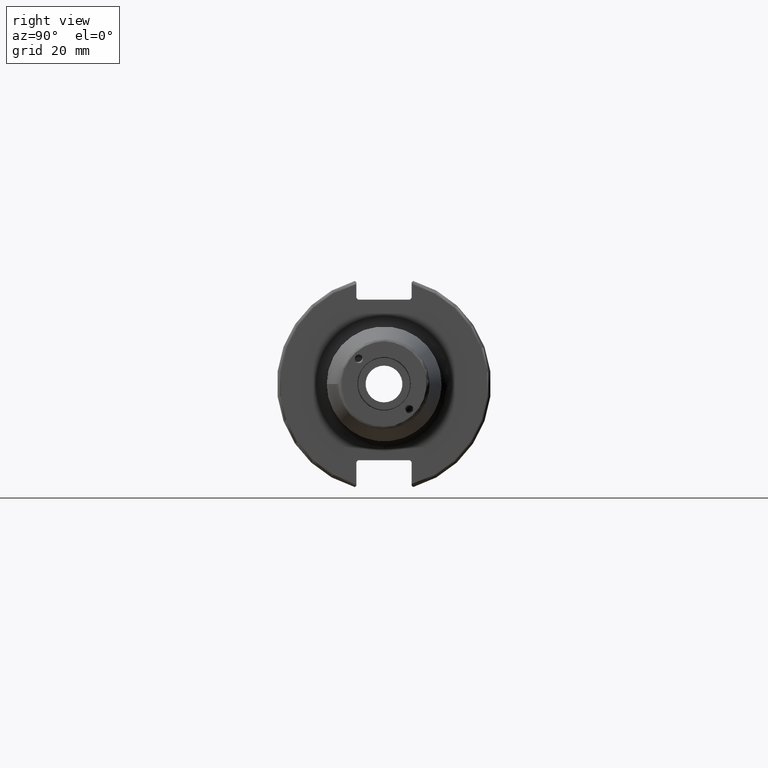
[diagram: clean part render]
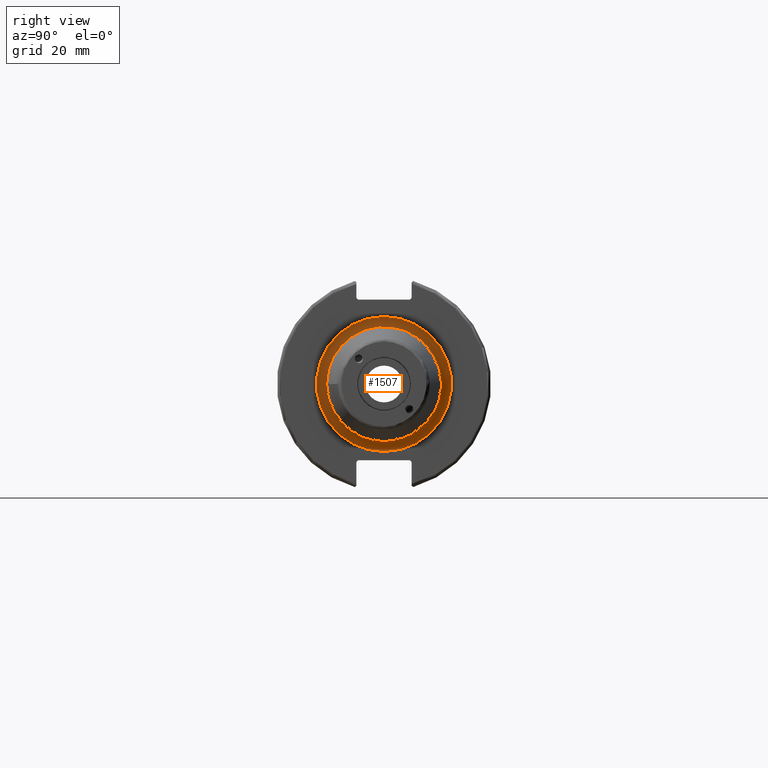
[diagram: same view with one face highlighted and labeled with its STEP entity id]
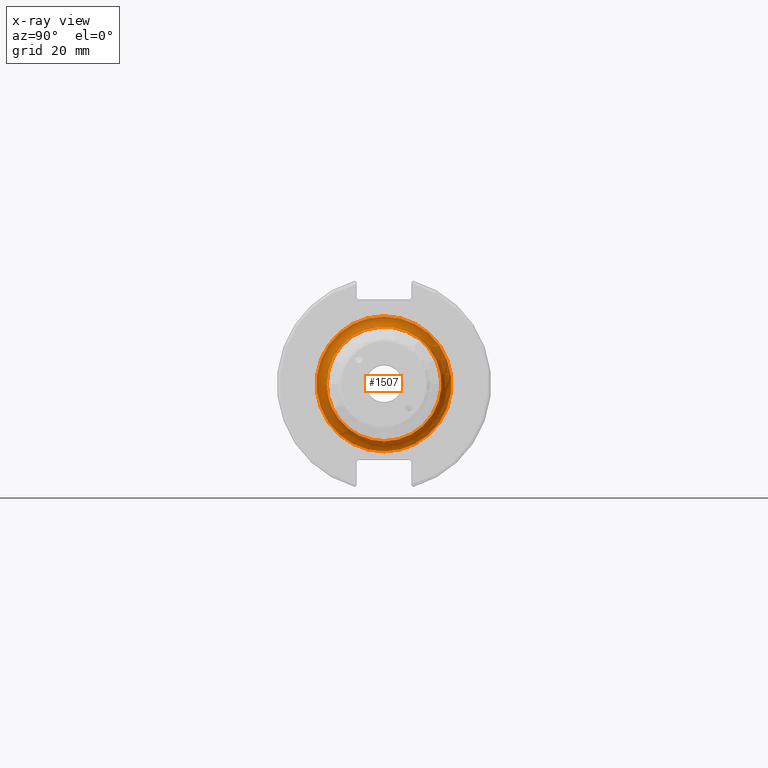
[diagram: x-ray of the same camera — body ghosted, the highlighted face saturated]
A machine part, right view. The second image highlights one B-rep face of the part: STEP entity #1507.
The next image is the same camera in x-ray: the body ghosted, the highlighted face saturated — about 1% of this face is hidden behind the body in this view.
In plain terms, the highlighted toroidal blend (fillet) surface has major radius 20 mm and minor (blend) radius 3 mm.
Its self-contained STEP definition (entity closure, byte-faithful):
#119=TOROIDAL_SURFACE('',#1628,20.,3.);
#182=FACE_OUTER_BOUND('',#273,.T.);
#273=EDGE_LOOP('',(#1046,#1047,#1048,#1049,#1050));
#563=CIRCLE('',#1629,17.);
#564=CIRCLE('',#1630,3.);
#565=CIRCLE('',#1631,20.);
#566=CIRCLE('',#1632,17.);
#639=VERTEX_POINT('',#2284);
#640=VERTEX_POINT('',#2285);
#641=VERTEX_POINT('',#2287);
#799=EDGE_CURVE('',#639,#640,#563,.T.);
#800=EDGE_CURVE('',#640,#641,#564,.T.);
#801=EDGE_CURVE('',#641,#641,#565,.T.);
#802=EDGE_CURVE('',#640,#639,#566,.T.);
#1046=ORIENTED_EDGE('',*,*,#799,.T.);
#1047=ORIENTED_EDGE('',*,*,#800,.T.);
#1048=ORIENTED_EDGE('',*,*,#801,.T.);
#1049=ORIENTED_EDGE('',*,*,#800,.F.);
#1050=ORIENTED_EDGE('',*,*,#802,.T.);
#1507=ADVANCED_FACE('',(#182),#119,.F.);
#1628=AXIS2_PLACEMENT_3D('',#2283,#1833,#1834);
#1629=AXIS2_PLACEMENT_3D('',#2286,#1835,#1836);
#1630=AXIS2_PLACEMENT_3D('',#2288,#1837,#1838);
#1631=AXIS2_PLACEMENT_3D('',#2289,#1839,#1840);
#1632=AXIS2_PLACEMENT_3D('',#2290,#1841,#1842);
#1833=DIRECTION('center_axis',(-1.,0.,0.));
#1834=DIRECTION('ref_axis',(0.,0.,1.));
#1835=DIRECTION('center_axis',(-1.,0.,0.));
#1836=DIRECTION('ref_axis',(0.,-1.,-1.22464679914735E-16));
#1837=DIRECTION('center_axis',(0.,-1.,1.22464679914735E-16));
#1838=DIRECTION('ref_axis',(0.,-1.22464679914735E-16,-1.));
#1839=DIRECTION('center_axis',(1.,0.,0.));
#1840=DIRECTION('ref_axis',(0.,-1.,-1.22464679914735E-16));
#1841=DIRECTION('center_axis',(-1.,0.,0.));
#1842=DIRECTION('ref_axis',(0.,-1.,-1.22464679914735E-16));
#2283=CARTESIAN_POINT('Origin',(22.05,0.,0.));
#2284=CARTESIAN_POINT('',(22.05,-17.,-2.0818995585505E-15));
#2285=CARTESIAN_POINT('',(22.05,-2.0818995585505E-15,-17.));
#2286=CARTESIAN_POINT('Origin',(22.05,0.,0.));
#2287=CARTESIAN_POINT('',(19.05,-2.44929359829471E-15,-20.));
#2288=CARTESIAN_POINT('Origin',(22.05,-2.44929359829471E-15,-20.));
#2289=CARTESIAN_POINT('Origin',(19.05,0.,0.));
#2290=CARTESIAN_POINT('Origin',(22.05,0.,0.));